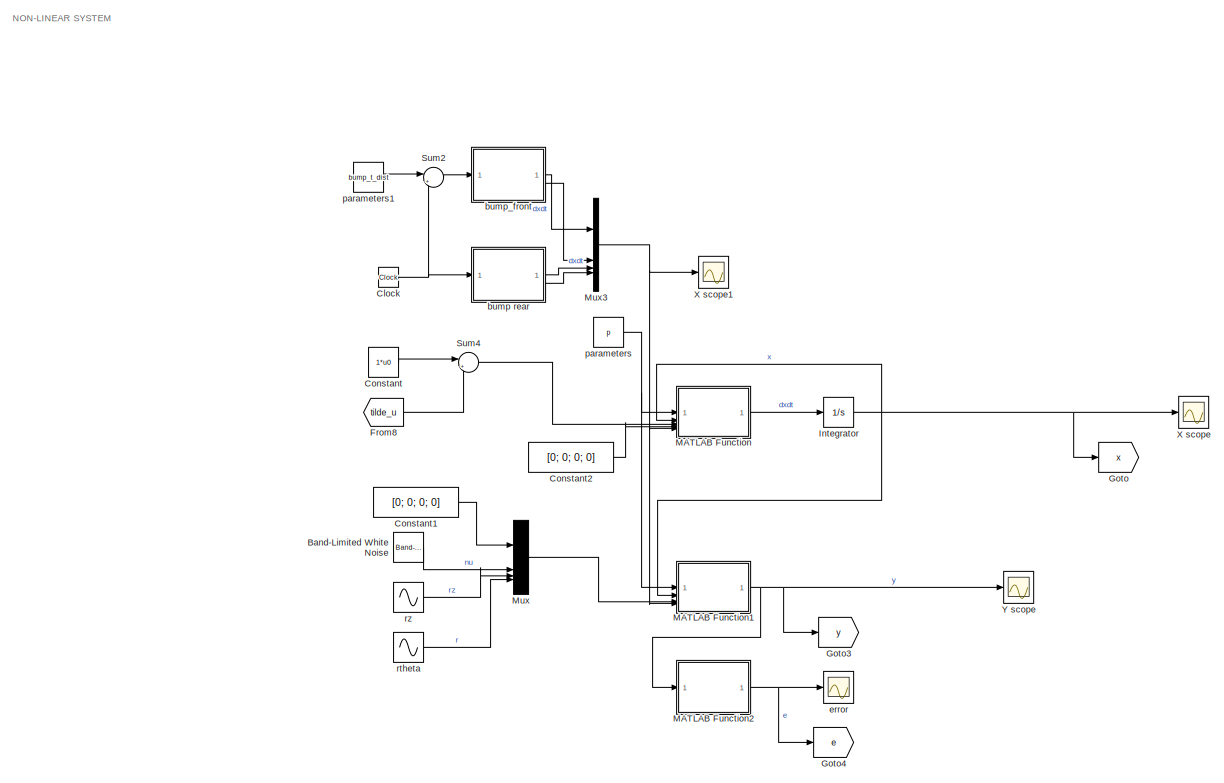
[diagram: root canvas - part 1/5, top left region]
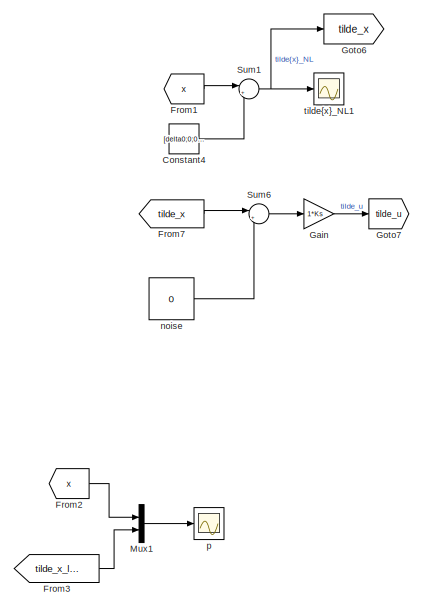
[diagram: root canvas - part 2/5, top right region]
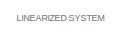
[diagram: root canvas - part 3/5, middle left region]
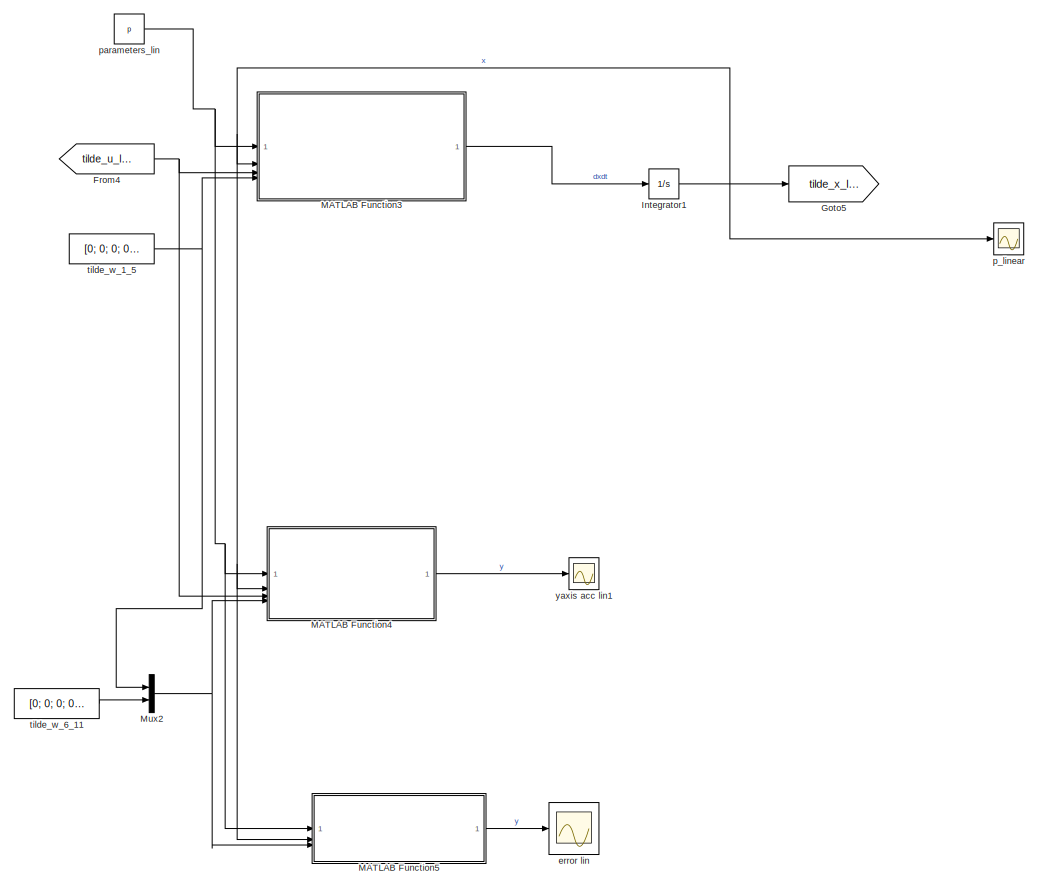
[diagram: root canvas - part 4/5, bottom center region]
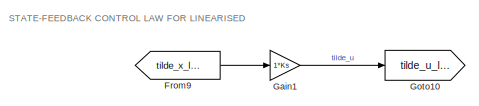
[diagram: root canvas - part 5/5, bottom right region]
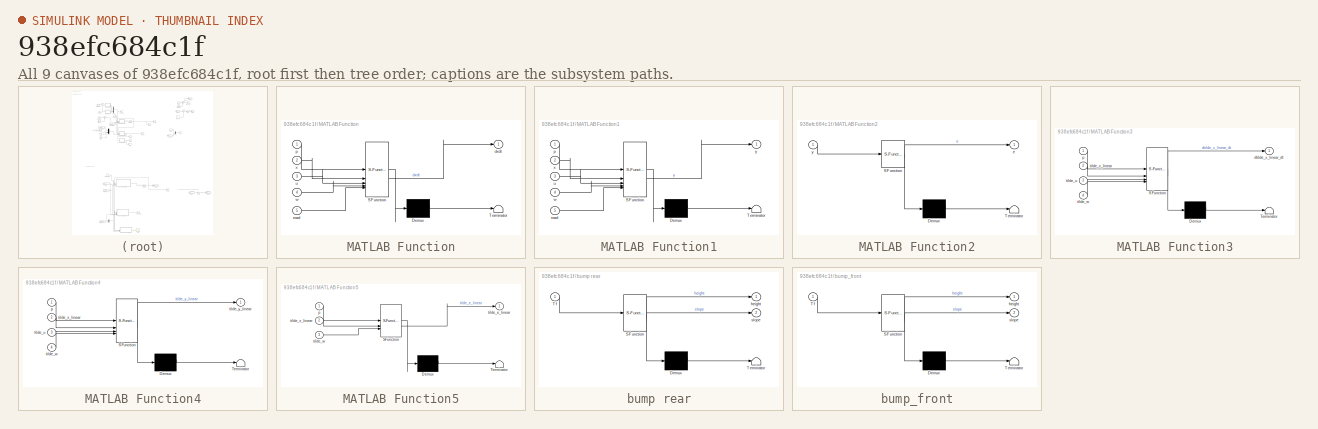
[diagram: thumbnail index - all 9 canvases of the model, root first then tree order]
MODEL slx_938efc684c1f
KIND model
CONFIG AbsTol = auto
CONFIG EnableMultiTasking = off
CONFIG FixedStep = auto
CONFIG MaxStep = auto
CONFIG MinStep = auto
CONFIG RelTol = 1e-3
CONFIG SampleTimeConstraint = Unconstrained
CONFIG SolverName = VariableStepAuto
CONFIG StartTime = 0.0
CONFIG StopTime = 20
BLOCK [Scope]  error lin
  Floating = off
  NumInputPorts = 1
  ScopeSpecificationString = Simulink.scopes.TimeScopeBlockCfg('CurrentConfiguration', extmgr.ConfigurationSet(extmgr.Configuration('Core','General UI',true),extmgr.Configuration('Core','Source UI',true),extmgr.Configuration('Sources','WiredSimulink',true,'DataLoggingVariableName','ScopeData6'),extmgr.Configuration('Visuals','Time Domain',true,'SerializedDisplays',{struct('MinYLimReal','-1.00000','MaxYLimReal','1.00000','YLab...<+1540ch>
BLOCK [Reference] Band-Limited White Noise  REF=simulink/Sources/Band-Limited
White Noise
  SourceBlock = simulink/Sources/Band-Limited\nWhite Noise
  SourceType = Band-Limited White Noise.
BLOCK [Clock] Clock
BLOCK [Constant] Constant
  Value = 1*u0
BLOCK [Constant] Constant1
  Value = [0; 0; 0; 0]
BLOCK [Constant] Constant2
  Value = [0; 0; 0; 0]
BLOCK [Constant] Constant4
  Value = [delta0;0;0;0;0;0]
BLOCK [From] From1
  GotoTag = x
BLOCK [From] From2
  GotoTag = x
BLOCK [From] From3
  GotoTag = tilde_x_linear
BLOCK [From] From4
  GotoTag = tilde_u_linear
BLOCK [From] From7
  GotoTag = tilde_x
BLOCK [From] From8
  GotoTag = tilde_u
BLOCK [From] From9
  GotoTag = tilde_x_linear
BLOCK [Gain] Gain
  Gain = 1*Ks
  Multiplication = Matrix(K*u)
BLOCK [Gain] Gain1
  Gain = 1*Ks
  Multiplication = Matrix(K*u)
BLOCK [Goto] Goto
  GotoTag = x
BLOCK [Goto] Goto10
  GotoTag = tilde_u_linear
BLOCK [Goto] Goto3
  GotoTag = y
BLOCK [Goto] Goto4
  GotoTag = e
BLOCK [Goto] Goto5
  GotoTag = tilde_x_linear
BLOCK [Goto] Goto6
  GotoTag = tilde_x
BLOCK [Goto] Goto7
  GotoTag = tilde_u
BLOCK [Integrator] Integrator
  InitialCondition = x0
BLOCK [Integrator] Integrator1
  InitialCondition = x0_lin
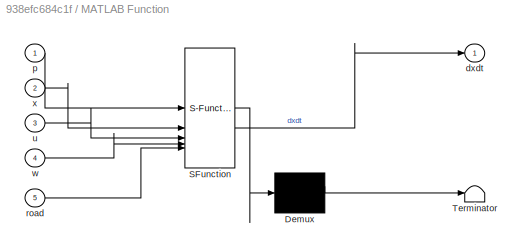
BLOCK [SubSystem] MATLAB Function
  ErrorFcn = Stateflow.Translate.translate
  PermitHierarchicalResolution = ExplicitOnly
  SFBlockType = MATLAB Function
  TreatAsAtomicUnit = on
BLOCK [Demux] MATLAB Function/ Demux 
  Outputs = 1
BLOCK [S-Function] MATLAB Function/ SFunction 
  EnableBusSupport = on
  FunctionName = sf_sfun
  PortCounts = [5 2]
  SFcnIsStateOwnerBlock = off
  SFunctionDeploymentMode = off
  Tag = Stateflow S-Function 2
BLOCK [Terminator] MATLAB Function/ Terminator 
BLOCK [Outport] MATLAB Function/dxdt
BLOCK [Inport] MATLAB Function/p
BLOCK [Inport] MATLAB Function/road
  Port = 5
BLOCK [Inport] MATLAB Function/u
  Port = 3
BLOCK [Inport] MATLAB Function/w
  Port = 4
BLOCK [Inport] MATLAB Function/x
  Port = 2
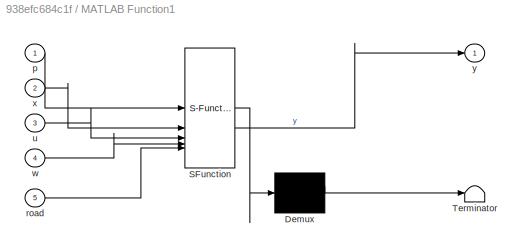
BLOCK [SubSystem] MATLAB Function1
  ErrorFcn = Stateflow.Translate.translate
  PermitHierarchicalResolution = ExplicitOnly
  SFBlockType = MATLAB Function
  TreatAsAtomicUnit = on
BLOCK [Demux] MATLAB Function1/ Demux 
  Outputs = 1
BLOCK [S-Function] MATLAB Function1/ SFunction 
  EnableBusSupport = on
  FunctionName = sf_sfun
  PortCounts = [5 2]
  SFcnIsStateOwnerBlock = off
  SFunctionDeploymentMode = off
  Tag = Stateflow S-Function 1
BLOCK [Terminator] MATLAB Function1/ Terminator 
BLOCK [Inport] MATLAB Function1/p
BLOCK [Inport] MATLAB Function1/road
  Port = 5
BLOCK [Inport] MATLAB Function1/u
  Port = 3
BLOCK [Inport] MATLAB Function1/w
  Port = 4
BLOCK [Inport] MATLAB Function1/x
  Port = 2
BLOCK [Outport] MATLAB Function1/y
BLOCK [SubSystem] MATLAB Function2
  ErrorFcn = Stateflow.Translate.translate
  PermitHierarchicalResolution = ExplicitOnly
  SFBlockType = MATLAB Function
  TreatAsAtomicUnit = on
BLOCK [Demux] MATLAB Function2/ Demux 
  Outputs = 1
BLOCK [S-Function] MATLAB Function2/ SFunction 
  EnableBusSupport = on
  FunctionName = sf_sfun
  PortCounts = [1 2]
  SFcnIsStateOwnerBlock = off
  SFunctionDeploymentMode = off
  Tag = Stateflow S-Function 3
BLOCK [Terminator] MATLAB Function2/ Terminator 
BLOCK [Outport] MATLAB Function2/e
BLOCK [Inport] MATLAB Function2/y
BLOCK [SubSystem] MATLAB Function3
  ErrorFcn = Stateflow.Translate.translate
  PermitHierarchicalResolution = ExplicitOnly
  SFBlockType = MATLAB Function
  TreatAsAtomicUnit = on
BLOCK [Demux] MATLAB Function3/ Demux 
  Outputs = 1
BLOCK [S-Function] MATLAB Function3/ SFunction 
  EnableBusSupport = on
  FunctionName = sf_sfun
  PortCounts = [4 2]
  SFcnIsStateOwnerBlock = off
  SFunctionDeploymentMode = off
  Tag = Stateflow S-Function 4
BLOCK [Terminator] MATLAB Function3/ Terminator 
BLOCK [Outport] MATLAB Function3/dtilde_x_linear_dt
BLOCK [Inport] MATLAB Function3/p
BLOCK [Inport] MATLAB Function3/tilde_u
  Port = 3
BLOCK [Inport] MATLAB Function3/tilde_w
  Port = 4
BLOCK [Inport] MATLAB Function3/tilde_x_linear
  Port = 2
BLOCK [SubSystem] MATLAB Function4
  ErrorFcn = Stateflow.Translate.translate
  PermitHierarchicalResolution = ExplicitOnly
  SFBlockType = MATLAB Function
  TreatAsAtomicUnit = on
BLOCK [Demux] MATLAB Function4/ Demux 
  Outputs = 1
BLOCK [S-Function] MATLAB Function4/ SFunction 
  EnableBusSupport = on
  FunctionName = sf_sfun
  PortCounts = [4 2]
  SFcnIsStateOwnerBlock = off
  SFunctionDeploymentMode = off
  Tag = Stateflow S-Function 5
BLOCK [Terminator] MATLAB Function4/ Terminator 
BLOCK [Inport] MATLAB Function4/p
BLOCK [Inport] MATLAB Function4/tilde_u
  Port = 3
BLOCK [Inport] MATLAB Function4/tilde_w
  Port = 4
BLOCK [Inport] MATLAB Function4/tilde_x_linear
  Port = 2
BLOCK [Outport] MATLAB Function4/tilde_y_linear
BLOCK [SubSystem] MATLAB Function5
  ErrorFcn = Stateflow.Translate.translate
  PermitHierarchicalResolution = ExplicitOnly
  SFBlockType = MATLAB Function
  TreatAsAtomicUnit = on
BLOCK [Demux] MATLAB Function5/ Demux 
  Outputs = 1
BLOCK [S-Function] MATLAB Function5/ SFunction 
  EnableBusSupport = on
  FunctionName = sf_sfun
  PortCounts = [3 2]
  SFcnIsStateOwnerBlock = off
  SFunctionDeploymentMode = off
  Tag = Stateflow S-Function 6
BLOCK [Terminator] MATLAB Function5/ Terminator 
BLOCK [Inport] MATLAB Function5/p
BLOCK [Outport] MATLAB Function5/tilde_e_linear
BLOCK [Inport] MATLAB Function5/tilde_w
  Port = 3
BLOCK [Inport] MATLAB Function5/tilde_x_linear
  Port = 2
BLOCK [Mux] Mux
  DisplayOption = bar
BLOCK [Mux] Mux1
  DisplayOption = bar
  Inputs = 2
BLOCK [Mux] Mux2
  DisplayOption = bar
  Inputs = 2
BLOCK [Mux] Mux3
  DisplayOption = bar
BLOCK [Sum] Sum1
  Inputs = |+-
BLOCK [Sum] Sum2
  Inputs = |++
BLOCK [Sum] Sum4
  Inputs = |++
BLOCK [Sum] Sum6
  Inputs = |++
BLOCK [Scope] X scope
  Floating = off
  NumInputPorts = 1
  ScopeSpecificationString = Simulink.scopes.TimeScopeBlockCfg('CurrentConfiguration', extmgr.ConfigurationSet(extmgr.Configuration('Core','General UI',true),extmgr.Configuration('Core','Source UI',true),extmgr.Configuration('Sources','WiredSimulink',true,'DataLoggingVariableName','ScopeData2'),extmgr.Configuration('Visuals','Time Domain',true,'SerializedDisplays',{struct('MinYLimReal','-2.11909','MaxYLimReal','2.06603','YLab...<+1695ch>
BLOCK [Scope] X scope1
  Floating = off
  NumInputPorts = 1
  ScopeSpecificationString = Simulink.scopes.TimeScopeBlockCfg('CurrentConfiguration', extmgr.ConfigurationSet(extmgr.Configuration('Core','General UI',true),extmgr.Configuration('Core','Source UI',true),extmgr.Configuration('Sources','WiredSimulink',true,'DataLoggingVariableName','ScopeData1'),extmgr.Configuration('Visuals','Time Domain',true,'SerializedDisplays',{struct('MinYLimReal','-7.83848','MaxYLimReal','7.83848','YLab...<+1673ch>
BLOCK [Scope] Y scope
  Floating = off
  NumInputPorts = 1
  ScopeSpecificationString = Simulink.scopes.TimeScopeBlockCfg('CurrentConfiguration', extmgr.ConfigurationSet(extmgr.Configuration('Core','General UI',true),extmgr.Configuration('Core','Source UI',true),extmgr.Configuration('Sources','WiredSimulink',true,'DataLoggingVariableName','ScopeData3'),extmgr.Configuration('Visuals','Time Domain',true,'SerializedDisplays',{struct('MinYLimReal','-4.79261','MaxYLimReal','4.54058','YLab...<+1753ch>
BLOCK [SubSystem] bump rear
  ErrorFcn = Stateflow.Translate.translate
  PermitHierarchicalResolution = ExplicitOnly
  SFBlockType = MATLAB Function
  TreatAsAtomicUnit = on
BLOCK [Demux] bump rear/ Demux 
  Outputs = 1
BLOCK [S-Function] bump rear/ SFunction 
  EnableBusSupport = on
  FunctionName = sf_sfun
  PortCounts = [1 3]
  SFcnIsStateOwnerBlock = off
  SFunctionDeploymentMode = off
  Tag = Stateflow S-Function 7
BLOCK [Terminator] bump rear/ Terminator 
BLOCK [Inport] bump rear/Tf
BLOCK [Outport] bump rear/height
BLOCK [Outport] bump rear/slope
  Port = 2
BLOCK [SubSystem] bump_front
  ErrorFcn = Stateflow.Translate.translate
  PermitHierarchicalResolution = ExplicitOnly
  SFBlockType = MATLAB Function
  TreatAsAtomicUnit = on
BLOCK [Demux] bump_front/ Demux 
  Outputs = 1
BLOCK [S-Function] bump_front/ SFunction 
  EnableBusSupport = on
  FunctionName = sf_sfun
  PortCounts = [1 3]
  SFcnIsStateOwnerBlock = off
  SFunctionDeploymentMode = off
  Tag = Stateflow S-Function 8
BLOCK [Terminator] bump_front/ Terminator 
BLOCK [Inport] bump_front/Tf
BLOCK [Outport] bump_front/height
BLOCK [Outport] bump_front/slope
  Port = 2
BLOCK [Scope] error 
  Floating = off
  NumInputPorts = 1
  ScopeSpecificationString = Simulink.scopes.TimeScopeBlockCfg('CurrentConfiguration', extmgr.ConfigurationSet(extmgr.Configuration('Core','General UI',true),extmgr.Configuration('Core','Source UI',true),extmgr.Configuration('Sources','WiredSimulink',true,'DataLoggingVariableName','ScopeData6'),extmgr.Configuration('Visuals','Time Domain',true,'SerializedDisplays',{struct('MinYLimReal','-0.92138','MaxYLimReal','0.76934','YLab...<+1466ch>
BLOCK [Constant] noise
  Value = 0
BLOCK [Scope] p
  Floating = off
  NumInputPorts = 1
  ScopeSpecificationString = Simulink.scopes.TimeScopeBlockCfg('CurrentConfiguration', extmgr.ConfigurationSet(extmgr.Configuration('Core','General UI',true),extmgr.Configuration('Core','Source UI',true),extmgr.Configuration('Sources','WiredSimulink',true,'DataLoggingVariableName','ScopeData2'),extmgr.Configuration('Visuals','Time Domain',true,'SerializedDisplays',{struct('MinYLimReal','-2.11909','MaxYLimReal','2.06603','YLab...<+2214ch>
BLOCK [Scope] p_linear
  Floating = off
  NumInputPorts = 1
  ScopeSpecificationString = Simulink.scopes.TimeScopeBlockCfg('CurrentConfiguration', extmgr.ConfigurationSet(extmgr.Configuration('Core','General UI',true),extmgr.Configuration('Core','Source UI',true),extmgr.Configuration('Sources','WiredSimulink',true,'DataLoggingVariableName','ScopeData2'),extmgr.Configuration('Visuals','Time Domain',true,'SerializedDisplays',{struct('MinYLimReal','-1.85296','MaxYLimReal','0.95967','YLab...<+1855ch>
BLOCK [Constant] parameters
  Value = p
BLOCK [Constant] parameters1
  Value = bump_t_dist
BLOCK [Constant] parameters_lin
  Value = p
BLOCK [Sin] rtheta
  Amplitude = 0
  Bias = r0
  Frequency = 0
  SampleTime = 0
BLOCK [Sin] rz
  Amplitude = 0
  Bias = r0
  Frequency = 0
  SampleTime = 0
BLOCK [Constant] tilde_w_1_5
  Value = [0; 0; 0; 0; 0]
BLOCK [Constant] tilde_w_6_11
  Value = [0; 0; 0; 0; 0; 0]
BLOCK [Scope] tilde{x}_NL1
  Floating = off
  NumInputPorts = 1
  ScopeSpecificationString = Simulink.scopes.TimeScopeBlockCfg('CurrentConfiguration', extmgr.ConfigurationSet(extmgr.Configuration('Core','General UI',true),extmgr.Configuration('Core','Source UI',true),extmgr.Configuration('Sources','WiredSimulink',true,'DataLoggingVariableName','ScopeData1'),extmgr.Configuration('Visuals','Time Domain',true,'SerializedDisplays',{struct('MinYLimReal','-4.93552','MaxYLimReal','2.55492','YLab...<+1716ch>
BLOCK [Scope] yaxis acc lin1
  Floating = off
  NumInputPorts = 1
  ScopeSpecificationString = Simulink.scopes.TimeScopeBlockCfg('CurrentConfiguration', extmgr.ConfigurationSet(extmgr.Configuration('Core','General UI',true),extmgr.Configuration('Core','Source UI',true),extmgr.Configuration('Sources','WiredSimulink',true,'DataLoggingVariableName','ScopeData1'),extmgr.Configuration('Visuals','Time Domain',true,'SerializedDisplays',{struct('MinYLimReal','-1.00000','MaxYLimReal','1.00000','YLab...<+1702ch>
ANNOTATION (root): LINEARIZED SYSTEM
ANNOTATION (root): NON-LINEAR SYSTEM
ANNOTATION (root): STATE-FEEDBACK CONTROL LAW FOR LINEARISED
LINE Band-Limited White Noise:1 -> Mux:2
NET Clock:1 -> Sum2:2, bump rear:1
LINE Constant1:1 -> Mux:1
LINE Constant2:1 -> MATLAB Function:4
LINE Constant4:1 -> Sum1:2
LINE Constant:1 -> Sum4:1
LINE From1:1 -> Sum1:1
LINE From2:1 -> Mux1:1
LINE From3:1 -> Mux1:2
NET From4:1 -> MATLAB Function3:3, MATLAB Function4:3
LINE From7:1 -> Sum6:1
LINE From8:1 -> Sum4:2
LINE From9:1 -> Gain1:1
LINE Gain1:1 -> Goto10:1
LINE Gain:1 -> Goto7:1
NET Integrator1:1 -> Goto5:1, MATLAB Function3:2, MATLAB Function4:2, MATLAB Function5:2, p_linear:1
NET Integrator:1 -> Goto:1, MATLAB Function1:2, MATLAB Function:2, X scope:1
NET MATLAB Function1:1 -> Goto3:1, MATLAB Function2:1, Y scope:1
NET MATLAB Function2:1 -> Goto4:1, error :1
LINE MATLAB Function3:1 -> Integrator1:1
LINE MATLAB Function4:1 -> yaxis acc lin1:1
LINE MATLAB Function5:1 ->  error lin:1
LINE MATLAB Function:1 -> Integrator:1
LINE Mux1:1 -> p:1
NET Mux2:1 -> MATLAB Function4:4, MATLAB Function5:3
NET Mux3:1 -> MATLAB Function1:5, MATLAB Function:5, X scope1:1
LINE Mux:1 -> MATLAB Function1:4
NET Sum1:1 -> Goto6:1, tilde{x}_NL1:1
LINE Sum2:1 -> bump_front:1
LINE Sum4:1 -> MATLAB Function:3
LINE Sum6:1 -> Gain:1
LINE bump rear:1 -> Mux3:3
LINE bump rear:2 -> Mux3:4
LINE bump_front:1 -> Mux3:1
LINE bump_front:2 -> Mux3:2
LINE noise:1 -> Sum6:2
LINE parameters1:1 -> Sum2:1
NET parameters:1 -> MATLAB Function1:1, MATLAB Function:1
NET parameters_lin:1 -> MATLAB Function3:1, MATLAB Function4:1, MATLAB Function5:1
LINE rtheta:1 -> Mux:4
LINE rz:1 -> Mux:3
NET tilde_w_1_5:1 -> MATLAB Function3:4, Mux2:1
LINE tilde_w_6_11:1 -> Mux2:2
note: NET lines group one-source signal fan-out (src -> all destinations, sorted); 1:1 wires keep LINE
CHART MATLAB Function1 states=1 transitions=1
  STATE_LABEL 'eML_blk_kernel()'
  STATE_LABEL 'SCRIPT:\nfunction y = h(p,x, u, w, road)\n\n%% parameters\nm = p(1);      % [kg] mass\nk = p(2);    % [N/m] spring stiffness\nbeta = p(3);   % [N/(m/s)] damper coeff.\nell0 = p(4);   % [m] 0-load lenght\ng = p(5);   % [m/s^2] gravity acceleration\ndf = p(6);     % [m] distance between center of mass and front\ndr = p(7);     % [m] distance between center of mass and rear\nJ = p(8);      % [kg*m^2] Moment of ...<+1633ch>'
CHART MATLAB Function states=1 transitions=1
  STATE_LABEL 'eML_blk_kernel()'
  STATE_LABEL 'SCRIPT:\nfunction dxdt = f(p,x,u,w,road)\n%% parameters\n%% parameters\nm = p(1);      % [kg] mass\nk = p(2);    % [N/m] spring stiffness\nbeta = p(3);   % [N/(m/s)] damper coeff.\nell0 = p(4);   % [m] 0-load lenght\ng = p(5);   % [m/s^2] gravity acceleration\ndf = p(6);     % [m] distance between center of mass and front\ndr = p(7);     % [m] distance between center of mass and rear\nJ = p(8);      % [kg*m^...<+1369ch>'
CHART MATLAB Function2 states=1 transitions=1
  STATE_LABEL 'eML_blk_kernel()'
  STATE_LABEL 'SCRIPT:\nfunction e = E(y)\n\ndf = 1;     % [m] distance between center of mass and front\ndr = 1;     % [m] distance between center of mass and rear\n\n\nyy = y(1); % output of h block yaxisacc \nyz = y(2); % output of h block zaxisacc \nyg = y(3); % output of h block gyro\nyf = y(4); % output of h block pot. front\nyr = y(5); % output of h block pot. rear\n \n%% ref\nrz = y(6);\nrtheta = y(7);\n\ne = [\n    (yf*d...<+67ch>'
CHART MATLAB Function3 states=1 transitions=1
  STATE_LABEL 'eML_blk_kernel()'
  STATE_LABEL 'SCRIPT:\nfunction dtilde_x_linear_dt = Linear(p,tilde_x_linear,tilde_u,tilde_w)\n\n\n\n%% parameters\n\n%% parameters\nm = p(1);      % [kg] mass\nk = p(2);    % [N/m] spring stiffness\nbeta = p(3);   % [N/(m/s)] damper coeff.\nell0 = p(4);   % [m] 0-load lenght\ng = p(5);   % [m/s^2] gravity acceleration\ndf = p(6);     % [m] distance between center of mass and front\ndr = p(7);     % [m] distance between cent...<+663ch>'
CHART MATLAB Function4 states=1 transitions=1
  STATE_LABEL 'eML_blk_kernel()'
  STATE_LABEL 'SCRIPT:\nfunction tilde_y_linear = Linear(p,tilde_x_linear,tilde_u,tilde_w)\n\n\n%% parameters\nm = p(1);      % [kg] mass\nk = p(2);    % [N/m] spring stiffness\nbeta = p(3);   % [N/(m/s)] damper coeff.\nell0 = p(4);   % [m] 0-load lenght\ng = p(5);   % [m/s^2] gravity acceleration\ndf = p(6);     % [m] distance between center of mass and front\ndr = p(7);     % [m] distance between center of mass and rear\n...<+517ch>'
CHART MATLAB Function5 states=1 transitions=1
  STATE_LABEL 'eML_blk_kernel()'
  STATE_LABEL 'SCRIPT:\nfunction tilde_e_linear = Linear(p,tilde_x_linear,tilde_w)\n\n\n%% parameters\nm = p(1);      % [kg] mass\nk = p(2);    % [N/m] spring stiffness\nbeta = p(3);   % [N/(m/s)] damper coeff.\nell0 = p(4);   % [m] 0-load lenght\ng = p(5);   % [m/s^2] gravity acceleration\ndf = p(6);     % [m] distance between center of mass and front\ndr = p(7);     % [m] distance between center of mass and rear\nJ = p(8)...<+251ch>'
CHART bump rear states=1 transitions=1
  STATE_LABEL 'eML_blk_kernel()'
  STATE_LABEL "SCRIPT:\nfunction [height, slope] = bump(Tf)\n    % Parametri\n    a = 0.5;       % Ampiezza del bump (m)\n    V = 20;         % Velocità del veicolo (m/s)\n    lambda = 5;     % Lunghezza dell'onda del bump (m)\n    Tspan = 5;      % Durata della simulazione (s)\n    T1 = 5;         % Tempo di inizio del bump\n    T2 = T1 + lambda/V; % Tempo di fine del bump\n\n    % Calcola l'altezza della strada in base ...<+344ch>"
CHART bump_front states=1 transitions=1
  STATE_LABEL 'eML_blk_kernel()'
  STATE_LABEL "SCRIPT:\nfunction [height, slope] = bump(Tf)\n    % Parametri\n    a = 0.5;       % Ampiezza del bump (m)\n    V = 20;         % Velocità del veicolo (m/s)\n    lambda = 5;     % Lunghezza dell'onda del bump (m)\n    Tspan = 5;      % Durata della simulazione (s)\n    T1 = 5;         % Tempo di inizio del bump\n    T2 = T1 + lambda/V; % Tempo di fine del bump\n\n    % Calcola l'altezza della strada in base ...<+344ch>"
CHART  states=0 transitions=0
CHART  states=0 transitions=0
CHART  states=0 transitions=0
CHART  states=0 transitions=0
CHART  states=0 transitions=0
CHART  states=0 transitions=0
CHART  states=0 transitions=0
CHART  states=0 transitions=0
